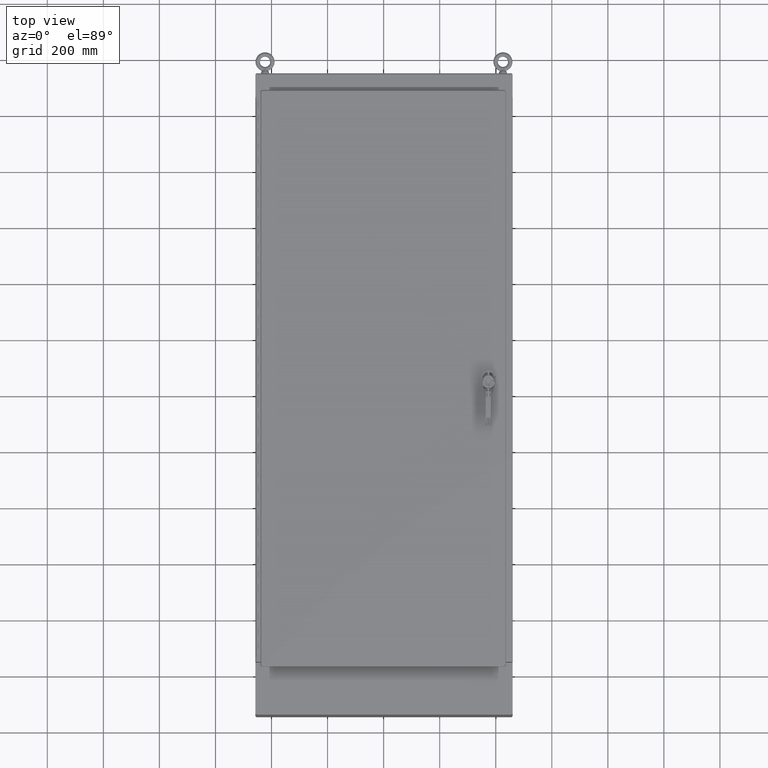
[diagram: clean part render]
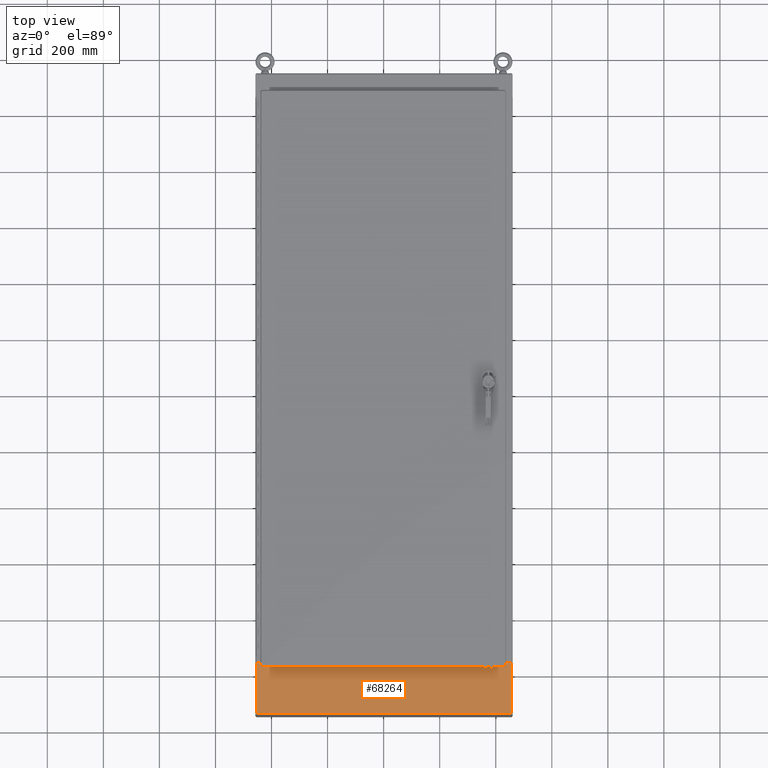
[diagram: same view with one face highlighted and labeled with its STEP entity id]
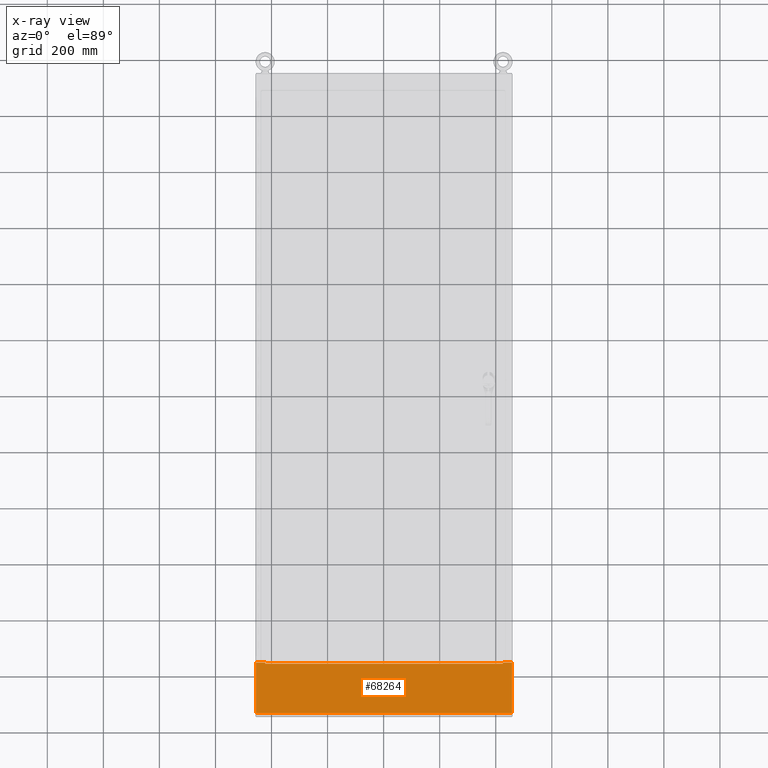
[diagram: x-ray of the same camera — body ghosted, the highlighted face saturated]
A machine part, top view. The second image highlights one B-rep face of the part: STEP entity #68264.
The next image is the same camera in x-ray: the body ghosted, the highlighted face saturated — about 0% of this face is hidden behind the body in this view.
In plain terms, the highlighted planar face has unit normal (0, -0, 1).
Its self-contained STEP definition (entity closure, byte-faithful):
#9305=PLANE('',#72144);
#10506=FACE_OUTER_BOUND('',#13484,.T.);
#13484=EDGE_LOOP('',(#51101,#51102,#51103,#51104,#51105,#51106,#51107,#51108,
#51109,#51110,#51111,#51112));
#20243=LINE('',#96825,#25490);
#20245=LINE('',#96831,#25492);
#20258=LINE('',#96870,#25505);
#20278=LINE('',#96911,#25525);
#20280=LINE('',#96915,#25527);
#20281=LINE('',#96918,#25528);
#20283=LINE('',#96921,#25530);
#20284=LINE('',#96924,#25531);
#20286=LINE('',#96927,#25533);
#20287=LINE('',#96930,#25534);
#20288=LINE('',#96932,#25535);
#20289=LINE('',#96933,#25536);
#25490=VECTOR('',#78852,0.393700787401575);
#25492=VECTOR('',#78856,0.393700787401575);
#25505=VECTOR('',#78887,0.393700787401575);
#25525=VECTOR('',#78931,0.393700787401575);
#25527=VECTOR('',#78935,0.393700787401575);
#25528=VECTOR('',#78938,0.393700787401575);
#25530=VECTOR('',#78942,0.393700787401575);
#25531=VECTOR('',#78945,0.393700787401575);
#25533=VECTOR('',#78949,0.393700787401575);
#25534=VECTOR('',#78952,0.393700787401575);
#25535=VECTOR('',#78953,0.393700787401575);
#25536=VECTOR('',#78954,0.179624999999999);
#30671=VERTEX_POINT('',#96819);
#30673=VERTEX_POINT('',#96823);
#30674=VERTEX_POINT('',#96827);
#30676=VERTEX_POINT('',#96830);
#30682=VERTEX_POINT('',#96843);
#30690=VERTEX_POINT('',#96860);
#30693=VERTEX_POINT('',#96868);
#30703=VERTEX_POINT('',#96913);
#30704=VERTEX_POINT('',#96917);
#30705=VERTEX_POINT('',#96923);
#30706=VERTEX_POINT('',#96929);
#30707=VERTEX_POINT('',#96931);
#40030=EDGE_CURVE('',#30671,#30673,#20243,.T.);
#40032=EDGE_CURVE('',#30676,#30674,#20245,.T.);
#40051=EDGE_CURVE('',#30674,#30693,#20258,.T.);
#40073=EDGE_CURVE('',#30690,#30682,#20278,.T.);
#40075=EDGE_CURVE('',#30682,#30703,#20280,.T.);
#40076=EDGE_CURVE('',#30704,#30671,#20281,.T.);
#40078=EDGE_CURVE('',#30703,#30704,#20283,.T.);
#40079=EDGE_CURVE('',#30705,#30690,#20284,.T.);
#40081=EDGE_CURVE('',#30693,#30705,#20286,.T.);
#40082=EDGE_CURVE('',#30706,#30673,#20287,.T.);
#40083=EDGE_CURVE('',#30706,#30707,#20288,.T.);
#40084=EDGE_CURVE('',#30676,#30707,#20289,.T.);
#51101=ORIENTED_EDGE('',*,*,#40030,.T.);
#51102=ORIENTED_EDGE('',*,*,#40082,.F.);
#51103=ORIENTED_EDGE('',*,*,#40083,.T.);
#51104=ORIENTED_EDGE('',*,*,#40084,.F.);
#51105=ORIENTED_EDGE('',*,*,#40032,.T.);
#51106=ORIENTED_EDGE('',*,*,#40051,.T.);
#51107=ORIENTED_EDGE('',*,*,#40081,.T.);
#51108=ORIENTED_EDGE('',*,*,#40079,.T.);
#51109=ORIENTED_EDGE('',*,*,#40073,.T.);
#51110=ORIENTED_EDGE('',*,*,#40075,.T.);
#51111=ORIENTED_EDGE('',*,*,#40078,.T.);
#51112=ORIENTED_EDGE('',*,*,#40076,.T.);
#68264=ADVANCED_FACE('',(#10506),#9305,.T.);
#72144=AXIS2_PLACEMENT_3D('',#96928,#78950,#78951);
#78852=DIRECTION('',(1.,-4.67339864028056E-16,-4.65265571231406E-35));
#78856=DIRECTION('',(1.,-4.67339864028056E-16,-4.65265571231406E-35));
#78887=DIRECTION('',(0.,-1.7195456062219E-15,1.));
#78931=DIRECTION('',(1.,-4.67339864028056E-16,0.));
#78935=DIRECTION('',(0.,-1.7195456062219E-15,1.));
#78938=DIRECTION('',(0.,1.7195456062219E-15,-1.));
#78942=DIRECTION('',(1.,-4.67339864028056E-16,0.));
#78945=DIRECTION('',(0.,1.7195456062219E-15,-1.));
#78949=DIRECTION('',(1.,-4.67339864028056E-16,0.));
#78950=DIRECTION('center_axis',(-4.67339864028056E-16,-1.,-1.7195456062219E-15));
#78951=DIRECTION('ref_axis',(1.,-4.67339864028056E-16,3.50484604917029E-16));
#78952=DIRECTION('',(5.91645678915759E-31,1.71512449944288E-15,-1.));
#78953=DIRECTION('',(-1.,4.67339864028056E-16,2.00421317790069E-31));
#78954=DIRECTION('',(-6.15811506551547E-31,-1.77635683940025E-15,1.));
#96819=CARTESIAN_POINT('',(16.6877,-10.0105,-7.219));
#96823=CARTESIAN_POINT('',(17.9585,-10.0105,-7.219));
#96825=CARTESIAN_POINT('',(8.34375,-10.0105,-7.219));
#96827=CARTESIAN_POINT('',(-16.6877,-10.0105,-7.219));
#96830=CARTESIAN_POINT('',(-17.9585,-10.0105,-7.219));
#96831=CARTESIAN_POINT('',(-8.97925,-10.0105,-7.219));
#96843=CARTESIAN_POINT('',(16.6875,-10.0105,-7.07325));
#96860=CARTESIAN_POINT('',(-16.6875,-10.0105,-7.07325));
#96868=CARTESIAN_POINT('',(-16.6877,-10.0105,-7.07305));
#96870=CARTESIAN_POINT('',(-16.6877,-10.0105,-5.31889267744987));
#96911=CARTESIAN_POINT('',(8.34375,-10.0105,-7.07325));
#96913=CARTESIAN_POINT('',(16.6875,-10.0105,-7.07305));
#96915=CARTESIAN_POINT('',(16.6875,-10.0105,-5.31889267744987));
#96917=CARTESIAN_POINT('',(16.6877,-10.0105,-7.07305));
#96918=CARTESIAN_POINT('',(16.6877,-10.0105,-5.41786767744987));
#96921=CARTESIAN_POINT('',(8.34385,-10.0105,-7.07305));
#96923=CARTESIAN_POINT('',(-16.6875,-10.0105,-7.07305));
#96924=CARTESIAN_POINT('',(-16.6875,-10.0105,-5.41786767744987));
#96927=CARTESIAN_POINT('',(-8.34375,-10.0105,-7.07305));
#96928=CARTESIAN_POINT('Origin',(5.13898317000043E-16,-10.0105,-3.56473535489974));
#96929=CARTESIAN_POINT('',(17.9585,-10.0105,-0.140624999999999));
#96930=CARTESIAN_POINT('',(17.9585,-10.0105,-0.140624999999999));
#96931=CARTESIAN_POINT('',(-17.9585,-10.0105,-0.140624999999999));
#96932=CARTESIAN_POINT('',(1.6089888870961E-15,-10.0105,-0.140624999999999));
#96933=CARTESIAN_POINT('',(-17.9585,-10.0105,0.423683580401065));